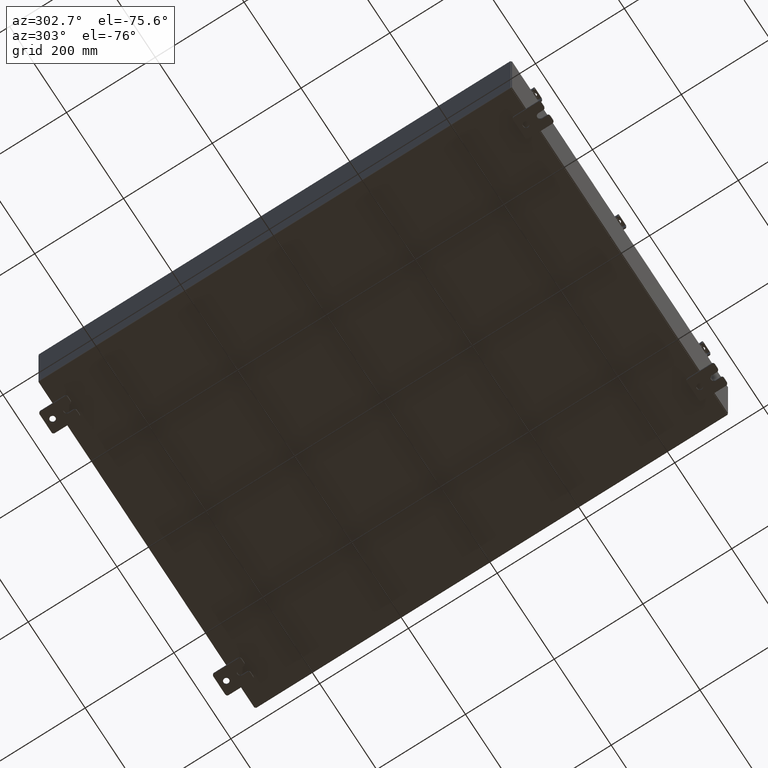
[diagram: clean part render]
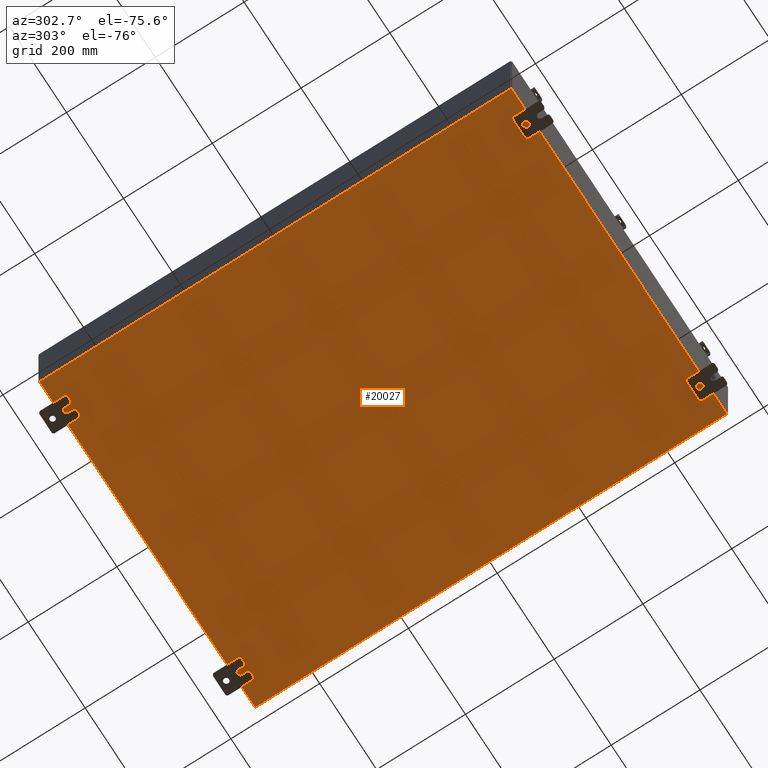
[diagram: same view with one face highlighted and labeled with its STEP entity id]
A machine part, auxiliary view. The second image highlights one B-rep face of the part: STEP entity #20027.
In plain terms, the highlighted planar face has unit normal (0, 0, -1).
Its self-contained STEP definition (entity closure, byte-faithful):
#964 = LINE ( 'NONE', #25967, #29512 ) ;
#1531 = LINE ( 'NONE', #34128, #42239 ) ;
#5224 = ORIENTED_EDGE ( 'NONE', *, *, #39201, .F. ) ;
#7245 = DIRECTION ( 'NONE',  ( -0.0000000000000000000, -1.000000000000000000, -8.208677865577646300E-017 ) ) ;
#10574 = CARTESIAN_POINT ( 'NONE',  ( 14.91230000000000200, 20.92529999999999300, -0.07469999999999714400 ) ) ;
#10905 = CARTESIAN_POINT ( 'NONE',  ( 0.0000000000000000000, 0.0000000000000000000, -0.07470000000000000300 ) ) ;
#11322 = CARTESIAN_POINT ( 'NONE',  ( -14.99999999999999800, -20.92529999999999300, -0.07470000000000000300 ) ) ;
#11682 = DIRECTION ( 'NONE',  ( -0.0000000000000000000, 1.000000000000000000, -0.0000000000000000000 ) ) ;
#11814 = VECTOR ( 'NONE', #12477, 39.37007874015748100 ) ;
#12056 = CARTESIAN_POINT ( 'NONE',  ( 14.91230000000000200, -20.92529999999999600, -0.07470000000000000300 ) ) ;
#12477 = DIRECTION ( 'NONE',  ( -1.000000000000000000, -0.0000000000000000000, -0.0000000000000000000 ) ) ;
#14720 = DIRECTION ( 'NONE',  ( -1.000000000000000000, 0.0000000000000000000, -0.0000000000000000000 ) ) ;
#19207 = VERTEX_POINT ( 'NONE', #46432 ) ;
#20027 = ADVANCED_FACE ( 'NONE', ( #32889 ), #37339, .T. ) ;
#22457 = ORIENTED_EDGE ( 'NONE', *, *, #27383, .T. ) ;
#22604 = DIRECTION ( 'NONE',  ( 1.000000000000000000, -1.456985596620940400E-016, 0.0000000000000000000 ) ) ;
#25967 = CARTESIAN_POINT ( 'NONE',  ( 14.91230000000000200, 20.92529999999999600, -0.07469999999999714400 ) ) ;
#27383 = EDGE_CURVE ( 'NONE', #45690, #38125, #964, .T. ) ;
#29512 = VECTOR ( 'NONE', #7245, 39.37007874015748100 ) ;
#29546 = VECTOR ( 'NONE', #22604, 39.37007874015748100 ) ;
#30962 = ORIENTED_EDGE ( 'NONE', *, *, #33069, .F. ) ;
#31259 = CARTESIAN_POINT ( 'NONE',  ( -14.99999999999999800, 20.92530000000000700, -0.07470000000000000300 ) ) ;
#32889 = FACE_OUTER_BOUND ( 'NONE', #46693, .T. ) ;
#33069 = EDGE_CURVE ( 'NONE', #45690, #40682, #41636, .T. ) ;
#34128 = CARTESIAN_POINT ( 'NONE',  ( -14.91229999999999800, -20.92529999999998900, -0.07469999999999994700 ) ) ;
#37339 = PLANE ( 'NONE',  #43945 ) ;
#38125 = VERTEX_POINT ( 'NONE', #12056 ) ;
#38638 = EDGE_CURVE ( 'NONE', #19207, #40682, #1531, .T. ) ;
#39201 = EDGE_CURVE ( 'NONE', #19207, #38125, #41682, .T. ) ;
#40682 = VERTEX_POINT ( 'NONE', #44659 ) ;
#41636 = LINE ( 'NONE', #31259, #11814 ) ;
#41682 = LINE ( 'NONE', #11322, #29546 ) ;
#42239 = VECTOR ( 'NONE', #11682, 39.37007874015748100 ) ;
#42979 = ORIENTED_EDGE ( 'NONE', *, *, #38638, .T. ) ;
#43945 = AXIS2_PLACEMENT_3D ( 'NONE', #10905, #48263, #14720 ) ;
#44659 = CARTESIAN_POINT ( 'NONE',  ( -14.91229999999999800, 20.92530000000000700, -0.07470000000000000300 ) ) ;
#45690 = VERTEX_POINT ( 'NONE', #10574 ) ;
#46432 = CARTESIAN_POINT ( 'NONE',  ( -14.91229999999999800, -20.92529999999998600, -0.07469999999999994700 ) ) ;
#46693 = EDGE_LOOP ( 'NONE', ( #5224, #42979, #30962, #22457 ) ) ;
#48263 = DIRECTION ( 'NONE',  ( 0.0000000000000000000, 0.0000000000000000000, -1.000000000000000000 ) ) ;